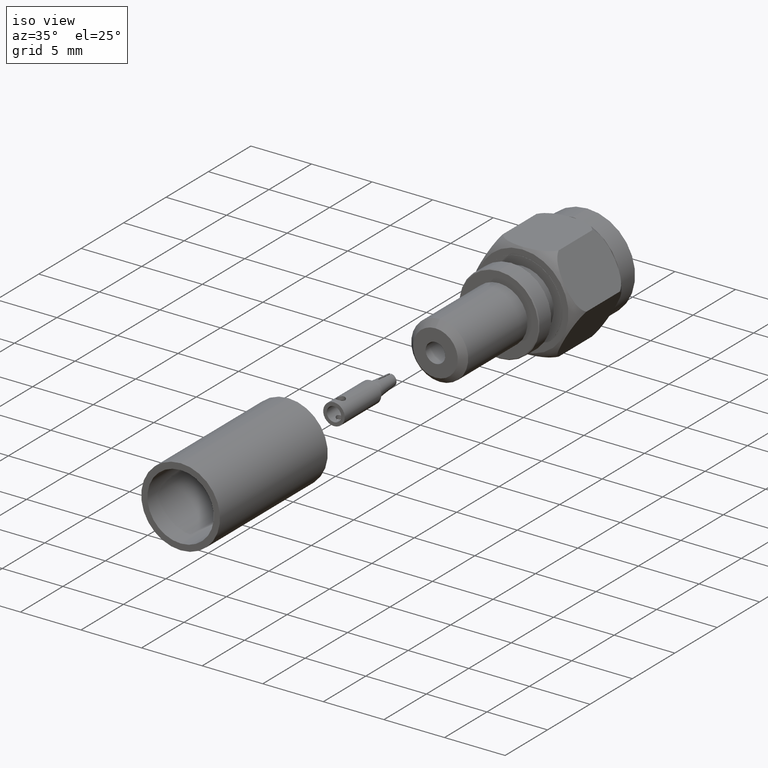
[diagram: clean part render]
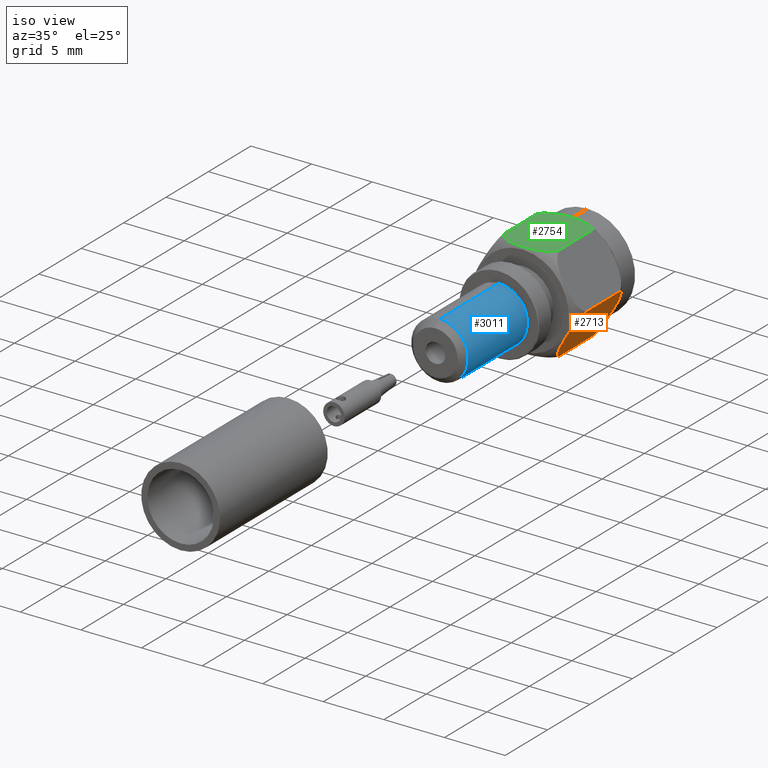
[diagram: same view with three faces highlighted in distinct colors, each labeled with its STEP entity id]
A machine part, iso view with three faces highlighted in distinct colors.
Their STEP definitions:

[orange] entity #2713 — the highlighted planar face has unit normal (-0.866, 0, 0.5).
#27 = CARTESIAN_POINT ( 'NONE',  ( 0.09006664199358174700, 0.07749999999999999900, -0.1560000000000000000 ) ) ;
#30 = VERTEX_POINT ( 'NONE', #27 ) ;
#110 = CARTESIAN_POINT ( 'NONE',  ( 0.1801332839871633000, 0.07749999999999999900, -5.122214988120493500E-017 ) ) ;
#111 = CARTESIAN_POINT ( 'NONE',  ( 0.1791392651766825800, 0.08132487858921630400, -0.001721691083431677200 ) ) ;
#112 = CARTESIAN_POINT ( 'NONE',  ( 0.1778359017004844700, 0.08481043977878151300, -0.003979182844936466700 ) ) ;
#113 = CARTESIAN_POINT ( 'NONE',  ( 0.1749115986983134100, 0.09091645002458012500, -0.009044224221422916500 ) ) ;
#114 = CARTESIAN_POINT ( 'NONE',  ( 0.1732809310562165900, 0.09358338893129682100, -0.01186862342779318100 ) ) ;
#115 = CARTESIAN_POINT ( 'NONE',  ( 0.1697619167272861100, 0.09832693057162490700, -0.01796373503806373100 ) ) ;
#116 = CARTESIAN_POINT ( 'NONE',  ( 0.1678736642886756400, 0.1003915450548186300, -0.02123428419925289100 ) ) ;
#117 = CARTESIAN_POINT ( 'NONE',  ( 0.1640130113962612600, 0.1039297833837526200, -0.02792113115930218400 ) ) ;
#118 = CARTESIAN_POINT ( 'NONE',  ( 0.1620237441491466600, 0.1054253391788926400, -0.03136664310113748700 ) ) ;
#119 = CARTESIAN_POINT ( 'NONE',  ( 0.1559171142852193700, 0.1092676602305941000, -0.04194363628847698500 ) ) ;
#120 = CARTESIAN_POINT ( 'NONE',  ( 0.1517818906347385100, 0.1109160746151377500, -0.04910605375177012900 ) ) ;
#121 = CARTESIAN_POINT ( 'NONE',  ( 0.1434805408817841900, 0.1130631376996672600, -0.06348441329528635400 ) ) ;
#122 = CARTESIAN_POINT ( 'NONE',  ( 0.1393033478783411200, 0.1135569297707708400, -0.07071952381027095400 ) ) ;
#123 = CARTESIAN_POINT ( 'NONE',  ( 0.1309038151776344700, 0.1135575165871926000, -0.08526794120773099900 ) ) ;
#124 = CARTESIAN_POINT ( 'NONE',  ( 0.1266516385428066400, 0.1130555250326611100, -0.09263292718201003600 ) ) ;
#125 = CARTESIAN_POINT ( 'NONE',  ( 0.1182812370932535100, 0.1108705387437523800, -0.1071308877723843200 ) ) ;
#126 = CARTESIAN_POINT ( 'NONE',  ( 0.1141578027388064800, 0.1092021596324204600, -0.1142728855759614800 ) ) ;
#127 = CARTESIAN_POINT ( 'NONE',  ( 0.1060997042439164500, 0.1041053802748038600, -0.1282299215815053100 ) ) ;
#128 = CARTESIAN_POINT ( 'NONE',  ( 0.1021636957830878700, 0.1006608057776561400, -0.1350472882146811800 ) ) ;
#129 = CARTESIAN_POINT ( 'NONE',  ( 0.09690380602829487500, 0.09355903251023074700, -0.1441576845121938000 ) ) ;
#130 = CARTESIAN_POINT ( 'NONE',  ( 0.09523188363802992400, 0.09081550468868732100, -0.1470535390384446800 ) ) ;
#131 = CARTESIAN_POINT ( 'NONE',  ( 0.09232001210263036900, 0.08470103869158925000, -0.1520970484828703700 ) ) ;
#175 = CARTESIAN_POINT ( 'NONE',  ( 0.09105966938114465300, 0.08132106369925844200, -0.1542800261114332100 ) ) ;
#176 = CARTESIAN_POINT ( 'NONE',  ( 0.09006664199358174700, 0.07749999999999999900, -0.1560000000000000000 ) ) ;
#178 = B_SPLINE_CURVE_WITH_KNOTS ( 'NONE', 3,
 ( #176, #175, #131, #130, #129, #128, #127, #126, #125, #124, #123, #122, #121, #120, #119, #118, #117, #116, #115, #114, #113, #112, #111, #110 ),
 .UNSPECIFIED., .F., .F.,
 ( 4, 2, 2, 2, 2, 2, 2, 2, 2, 2, 2, 4 ),
 ( 2.204096890382543700E-007, 0.0003211244726676897100, 0.0006420285356463410800, 0.001283836661603643800, 0.001925644787560946600, 0.002567452913518248900, 0.003209261039475552300, 0.003851069165432855700, 0.004171973228411508300, 0.004492877291390160400, 0.004813781354368811700, 0.005134685417347464700 ),
 .UNSPECIFIED. ) ;
#209 = EDGE_CURVE ( 'NONE', #30, #268, #178, .T. ) ;
#268 = VERTEX_POINT ( 'NONE', #348 ) ;
#348 = CARTESIAN_POINT ( 'NONE',  ( 0.1801332839871633000, 0.07749999999999999900, -5.122214988120493500E-017 ) ) ;
#1011 = LINE ( 'NONE', #1094, #1088 ) ;
#1074 = PLANE ( 'NONE',  #1076 ) ;
#1076 = AXIS2_PLACEMENT_3D ( 'NONE', #1120, #1119, #1118 ) ;
#1080 = FACE_OUTER_BOUND ( 'NONE', #2710, .T. ) ;
#1088 = VECTOR ( 'NONE', #1093, 39.37007874015748100 ) ;
#1093 = DIRECTION ( 'NONE',  ( -0.0000000000000000000, -1.000000000000000000, -0.0000000000000000000 ) ) ;
#1094 = CARTESIAN_POINT ( 'NONE',  ( 0.1801332839871633000, 0.1174999999999999900, 2.134256245050205600E-017 ) ) ;
#1108 = DIRECTION ( 'NONE',  ( -0.0000000000000000000, -1.000000000000000000, -0.0000000000000000000 ) ) ;
#1109 = VECTOR ( 'NONE', #1108, 39.37007874015748100 ) ;
#1110 = CARTESIAN_POINT ( 'NONE',  ( 0.09006664199358148400, 0.1174999999999999900, -0.1560000000000000000 ) ) ;
#1118 = DIRECTION ( 'NONE',  ( 0.5000000000000007800, 0.0000000000000000000, 0.8660254037844380400 ) ) ;
#1119 = DIRECTION ( 'NONE',  ( -0.8660254037844381500, 0.0000000000000000000, 0.5000000000000008900 ) ) ;
#1120 = CARTESIAN_POINT ( 'NONE',  ( 0.09006664199358148400, 0.1174999999999999900, -0.1560000000000000000 ) ) ;
#1121 = LINE ( 'NONE', #1110, #1109 ) ;
#1551 = CARTESIAN_POINT ( 'NONE',  ( 0.09006664199358174700, -0.07749999999999999900, -0.1560000000000000000 ) ) ;
#1560 = CARTESIAN_POINT ( 'NONE',  ( 0.1801332839871633000, -0.07750000000062706700, 2.134256245050205600E-017 ) ) ;
#1624 = CARTESIAN_POINT ( 'NONE',  ( 0.09006664199358174700, -0.07749999999999999900, -0.1560000000000000000 ) ) ;
#1625 = CARTESIAN_POINT ( 'NONE',  ( 0.09106066080405968200, -0.08132487858920735300, -0.1542783089165724900 ) ) ;
#1626 = CARTESIAN_POINT ( 'NONE',  ( 0.09236402428025405900, -0.08481043977876515100, -0.1520208171550743400 ) ) ;
#1627 = CARTESIAN_POINT ( 'NONE',  ( 0.09528832728241645700, -0.09091645002455285600, -0.1469557757786028000 ) ) ;
#1628 = CARTESIAN_POINT ( 'NONE',  ( 0.09691899492450828400, -0.09358338893126570700, -0.1441313765722411800 ) ) ;
#1629 = CARTESIAN_POINT ( 'NONE',  ( 0.1004380092534279300, -0.09832693057158814500, -0.1380362649619895900 ) ) ;
#1630 = CARTESIAN_POINT ( 'NONE',  ( 0.1023262616920330400, -0.1003915450547808600, -0.1347657158008097300 ) ) ;
#1631 = CARTESIAN_POINT ( 'NONE',  ( 0.1061869145844363500, -0.1039297833837142900, -0.1280788688407794000 ) ) ;
#1632 = CARTESIAN_POINT ( 'NONE',  ( 0.1081761818315454000, -0.1054253391788548100, -0.1246333568989538000 ) ) ;
#1633 = CARTESIAN_POINT ( 'NONE',  ( 0.1142828116954554100, -0.1092676602305594900, -0.1140563637116443200 ) ) ;
#1634 = CARTESIAN_POINT ( 'NONE',  ( 0.1184180353459271700, -0.1109160746151086600, -0.1068939462483668200 ) ) ;
#1635 = CARTESIAN_POINT ( 'NONE',  ( 0.1267193850988608300, -0.1130631376996501400, -0.09251558670488638200 ) ) ;
#1636 = CARTESIAN_POINT ( 'NONE',  ( 0.1308965781022935500, -0.1135569297707610100, -0.08528047618991976800 ) ) ;
#1637 = CARTESIAN_POINT ( 'NONE',  ( 0.1392961108029792100, -0.1135575165872023700, -0.07073205879249606900 ) ) ;
#1638 = CARTESIAN_POINT ( 'NONE',  ( 0.1435482874377963800, -0.1130555250326833900, -0.06336707281823547600 ) ) ;
#1639 = CARTESIAN_POINT ( 'NONE',  ( 0.1519186888873325400, -0.1108705387438084900, -0.04886911222789056000 ) ) ;
#1640 = CARTESIAN_POINT ( 'NONE',  ( 0.1560421232417715800, -0.1092021596324979900, -0.04172711442432720100 ) ) ;
#1641 = CARTESIAN_POINT ( 'NONE',  ( 0.1641002217366479000, -0.1041053802749457000, -0.02777007841880713800 ) ) ;
#1642 = CARTESIAN_POINT ( 'NONE',  ( 0.1680362301974758500, -0.1006608057778368100, -0.02095271178563228700 ) ) ;
#1643 = CARTESIAN_POINT ( 'NONE',  ( 0.1732961199522760900, -0.09355903251049702000, -0.01184231548810726700 ) ) ;
#1644 = CARTESIAN_POINT ( 'NONE',  ( 0.1749680423425471200, -0.09081550468898524900, -0.008946460961845797300 ) ) ;
#1645 = CARTESIAN_POINT ( 'NONE',  ( 0.1778799138779685300, -0.08470103869194932400, -0.003902951517382311000 ) ) ;
#1646 = CARTESIAN_POINT ( 'NONE',  ( 0.1791402565994673300, -0.08132106369965329300, -0.001719973888796692100 ) ) ;
#1647 = CARTESIAN_POINT ( 'NONE',  ( 0.1801332839871633000, -0.07750000000062706700, 2.134256245050205600E-017 ) ) ;
#1652 = B_SPLINE_CURVE_WITH_KNOTS ( 'NONE', 3,
 ( #1647, #1646, #1645, #1644, #1643, #1642, #1641, #1640, #1639, #1638, #1637, #1636, #1635, #1634, #1633, #1632, #1631, #1630, #1629, #1628, #1627, #1626, #1625, #1624 ),
 .UNSPECIFIED., .F., .F.,
 ( 4, 2, 2, 2, 2, 2, 2, 2, 2, 2, 2, 4 ),
 ( 2.204097013235236000E-007, 0.0003211244726792078900, 0.0006420285356570922500, 0.001283836661612860000, 0.001925644787568627100, 0.002567452913524395000, 0.003209261039480162300, 0.003851069165435929600, 0.004171973228413813700, 0.004492877291391696500, 0.004813781354369580200, 0.005134685417347463000 ),
 .UNSPECIFIED. ) ;
#2695 = EDGE_CURVE ( 'NONE', #268, #2960, #1011, .T. ) ;
#2705 = ORIENTED_EDGE ( 'NONE', *, *, #2715, .F. ) ;
#2710 = EDGE_LOOP ( 'NONE', ( #2705, #2719, #2716, #3070 ) ) ;
#2713 = ADVANCED_FACE ( 'NONE', ( #1080 ), #1074, .F. ) ;
#2715 = EDGE_CURVE ( 'NONE', #30, #2962, #1121, .T. ) ;
#2716 = ORIENTED_EDGE ( 'NONE', *, *, #2695, .T. ) ;
#2719 = ORIENTED_EDGE ( 'NONE', *, *, #209, .T. ) ;
#2960 = VERTEX_POINT ( 'NONE', #1560 ) ;
#2962 = VERTEX_POINT ( 'NONE', #1551 ) ;
#2984 = EDGE_CURVE ( 'NONE', #2960, #2962, #1652, .T. ) ;
#3070 = ORIENTED_EDGE ( 'NONE', *, *, #2984, .T. ) ;

[blue] entity #3011 — the highlighted cylindrical surface (edge-blend (fillet) strip) has radius 2.3495 mm, axis along (0, 1, 0).
#1299 = CARTESIAN_POINT ( 'NONE',  ( 0.0000000000000000000, -0.2255000000000000300, 0.09249999999999999900 ) ) ;
#1561 = DIRECTION ( 'NONE',  ( 0.0000000000000000000, 0.0000000000000000000, -1.000000000000000000 ) ) ;
#1562 = DIRECTION ( 'NONE',  ( 0.0000000000000000000, 1.000000000000000000, 0.0000000000000000000 ) ) ;
#1563 = AXIS2_PLACEMENT_3D ( 'NONE', #1572, #1562, #1561 ) ;
#1564 = CIRCLE ( 'NONE', #1563, 0.09249999999999999900 ) ;
#1572 = CARTESIAN_POINT ( 'NONE',  ( 0.0000000000000000000, -0.5004999999999999400, 0.0000000000000000000 ) ) ;
#1577 = DIRECTION ( 'NONE',  ( -0.0000000000000000000, 1.000000000000000000, -0.0000000000000000000 ) ) ;
#1578 = VECTOR ( 'NONE', #1577, 39.37007874015748100 ) ;
#1579 = CARTESIAN_POINT ( 'NONE',  ( 1.132798289211301800E-017, -0.5205000000000000700, -0.09249999999999999900 ) ) ;
#1580 = LINE ( 'NONE', #1579, #1578 ) ;
#1653 = CARTESIAN_POINT ( 'NONE',  ( 1.132798289211301800E-017, -0.2255000000000000300, -0.09249999999999999900 ) ) ;
#1702 = CARTESIAN_POINT ( 'NONE',  ( 0.0000000000000000000, -0.5004999999999999400, 0.09249999999999999900 ) ) ;
#1742 = CARTESIAN_POINT ( 'NONE',  ( 1.132798289211301800E-017, -0.5004999999999999400, -0.09249999999999999900 ) ) ;
#1948 = DIRECTION ( 'NONE',  ( 0.0000000000000000000, 0.0000000000000000000, 1.000000000000000000 ) ) ;
#1949 = DIRECTION ( 'NONE',  ( -0.0000000000000000000, 1.000000000000000000, -0.0000000000000000000 ) ) ;
#1952 = CARTESIAN_POINT ( 'NONE',  ( 0.0000000000000000000, -0.5205000000000000700, 0.0000000000000000000 ) ) ;
#1953 = DIRECTION ( 'NONE',  ( 0.0000000000000000000, 0.0000000000000000000, -1.000000000000000000 ) ) ;
#1954 = DIRECTION ( 'NONE',  ( 0.0000000000000000000, -1.000000000000000000, 0.0000000000000000000 ) ) ;
#1955 = CARTESIAN_POINT ( 'NONE',  ( 0.0000000000000000000, -0.2255000000000000300, 0.0000000000000000000 ) ) ;
#1956 = AXIS2_PLACEMENT_3D ( 'NONE', #1955, #1954, #1953 ) ;
#1957 = AXIS2_PLACEMENT_3D ( 'NONE', #1952, #1949, #1948 ) ;
#1958 = DIRECTION ( 'NONE',  ( -0.0000000000000000000, 1.000000000000000000, -0.0000000000000000000 ) ) ;
#1959 = VECTOR ( 'NONE', #1958, 39.37007874015748100 ) ;
#1960 = CARTESIAN_POINT ( 'NONE',  ( 0.0000000000000000000, -0.5205000000000000700, 0.09249999999999999900 ) ) ;
#1961 = LINE ( 'NONE', #1960, #1959 ) ;
#1962 = CIRCLE ( 'NONE', #1956, 0.09249999999999999900 ) ;
#1963 = CYLINDRICAL_SURFACE ( 'NONE', #1957, 0.09249999999999999900 ) ;
#1967 = FACE_OUTER_BOUND ( 'NONE', #3014, .T. ) ;
#2899 = ORIENTED_EDGE ( 'NONE', *, *, #3006, .F. ) ;
#2902 = VERTEX_POINT ( 'NONE', #1299 ) ;
#2942 = VERTEX_POINT ( 'NONE', #1742 ) ;
#2946 = VERTEX_POINT ( 'NONE', #1702 ) ;
#2950 = EDGE_CURVE ( 'NONE', #2946, #2942, #1564, .T. ) ;
#2999 = VERTEX_POINT ( 'NONE', #1653 ) ;
#3000 = EDGE_CURVE ( 'NONE', #2942, #2999, #1580, .T. ) ;
#3005 = ORIENTED_EDGE ( 'NONE', *, *, #3007, .T. ) ;
#3006 = EDGE_CURVE ( 'NONE', #2946, #2902, #1961, .T. ) ;
#3007 = EDGE_CURVE ( 'NONE', #2999, #2902, #1962, .T. ) ;
#3010 = ORIENTED_EDGE ( 'NONE', *, *, #3000, .T. ) ;
#3011 = ADVANCED_FACE ( 'NONE', ( #1967 ), #1963, .T. ) ;
#3012 = ORIENTED_EDGE ( 'NONE', *, *, #2950, .T. ) ;
#3014 = EDGE_LOOP ( 'NONE', ( #3012, #3010, #3005, #2899 ) ) ;

[green] entity #2754 — the highlighted planar face has unit normal (0, 0, -1).
#1 = CARTESIAN_POINT ( 'NONE',  ( 0.008450997494515655900, 0.1135572233053826100, 0.1560000000000000300 ) ) ;
#2 = CARTESIAN_POINT ( 'NONE',  ( 0.01689304499247248200, 0.1130547850739234100, 0.1560000000000000000 ) ) ;
#3 = CARTESIAN_POINT ( 'NONE',  ( 0.03359171387172955900, 0.1108777151575357200, 0.1560000000000000300 ) ) ;
#4 = CARTESIAN_POINT ( 'NONE',  ( 0.04194874959850779200, 0.1091863545924823000, 0.1559999999999999400 ) ) ;
#5 = CARTESIAN_POINT ( 'NONE',  ( 0.05805035726873620400, 0.1040850150126289800, 0.1560000000000000000 ) ) ;
#6 = CARTESIAN_POINT ( 'NONE',  ( 0.06584102524757827500, 0.1006816729264388400, 0.1559999999999999400 ) ) ;
#7 = CARTESIAN_POINT ( 'NONE',  ( 0.07640472395876499200, 0.09355085670352236700, 0.1560000000000000300 ) ) ;
#8 = CARTESIAN_POINT ( 'NONE',  ( 0.07967098343096562500, 0.09087574840599509100, 0.1560000000000000300 ) ) ;
#9 = CARTESIAN_POINT ( 'NONE',  ( 0.08553115326292001800, 0.08473927719803107900, 0.1560000000000000000 ) ) ;
#10 = CARTESIAN_POINT ( 'NONE',  ( 0.08810343659456752700, 0.08127710271557178600, 0.1560000000000000000 ) ) ;
#11 = CARTESIAN_POINT ( 'NONE',  ( 0.09006664199358151200, 0.07749999999999999900, 0.1560000000000000000 ) ) ;
#15 = CARTESIAN_POINT ( 'NONE',  ( 0.09006664199358151200, 0.07749999999999999900, 0.1560000000000000000 ) ) ;
#17 = B_SPLINE_CURVE_WITH_KNOTS ( 'NONE', 3,
 ( #11, #10, #9, #8, #7, #6, #5, #4, #3, #2, #1, #174 ),
 .UNSPECIFIED., .F., .F.,
 ( 4, 2, 2, 2, 2, 4 ),
 ( 0.009407508188636804300, 0.009726627086598591000, 0.01004574598456037800, 0.01068398378048395100, 0.01132222157640752600, 0.01196045937233110000 ),
 .UNSPECIFIED. ) ;
#26 = CARTESIAN_POINT ( 'NONE',  ( 1.910449006669871100E-017, 0.1135572233053825900, 0.1560000000000000000 ) ) ;
#35 = VERTEX_POINT ( 'NONE', #26 ) ;
#37 = EDGE_CURVE ( 'NONE', #40, #35, #17, .T. ) ;
#40 = VERTEX_POINT ( 'NONE', #15 ) ;
#174 = CARTESIAN_POINT ( 'NONE',  ( 1.910449006669871100E-017, 0.1135572233053825900, 0.1560000000000000000 ) ) ;
#1029 = DIRECTION ( 'NONE',  ( 0.0000000000000000000, 0.0000000000000000000, -1.000000000000000000 ) ) ;
#1032 = AXIS2_PLACEMENT_3D ( 'NONE', #1036, #1029, #1259 ) ;
#1033 = CARTESIAN_POINT ( 'NONE',  ( 0.09006664199358151200, 0.1174999999999999900, 0.1560000000000000000 ) ) ;
#1036 = CARTESIAN_POINT ( 'NONE',  ( 0.09006664199358151200, 0.1174999999999999900, 0.1560000000000000000 ) ) ;
#1162 = FACE_OUTER_BOUND ( 'NONE', #2741, .T. ) ;
#1174 = VECTOR ( 'NONE', #1217, 39.37007874015748100 ) ;
#1175 = CARTESIAN_POINT ( 'NONE',  ( -0.09006664199358151200, 0.1174999999999999900, 0.1560000000000000000 ) ) ;
#1176 = LINE ( 'NONE', #1175, #1174 ) ;
#1214 = PLANE ( 'NONE',  #1032 ) ;
#1215 = CARTESIAN_POINT ( 'NONE',  ( -0.09006664199358174700, -0.07749999999999999900, 0.1560000000000000000 ) ) ;
#1217 = DIRECTION ( 'NONE',  ( -0.0000000000000000000, -1.000000000000000000, -0.0000000000000000000 ) ) ;
#1240 = DIRECTION ( 'NONE',  ( -0.0000000000000000000, -1.000000000000000000, -0.0000000000000000000 ) ) ;
#1241 = VECTOR ( 'NONE', #1240, 39.37007874015748100 ) ;
#1259 = DIRECTION ( 'NONE',  ( -1.000000000000000000, 0.0000000000000000000, -0.0000000000000000000 ) ) ;
#1260 = CARTESIAN_POINT ( 'NONE',  ( -0.09006664199358174700, 0.07749999999999999900, 0.1560000000000000000 ) ) ;
#1262 = LINE ( 'NONE', #1033, #1241 ) ;
#1434 = CARTESIAN_POINT ( 'NONE',  ( -0.008480627520290853100, 0.1135572233053826200, 0.1560000000000000300 ) ) ;
#1435 = CARTESIAN_POINT ( 'NONE',  ( 1.910449006669871100E-017, 0.1135572233053825900, 0.1560000000000000000 ) ) ;
#1438 = B_SPLINE_CURVE_WITH_KNOTS ( 'NONE', 3,
 ( #1435, #1434, #1503, #1502, #1501, #1500, #1499, #1498, #1497, #1496, #1495, #1494, #1493, #1492 ),
 .UNSPECIFIED., .F., .F.,
 ( 4, 2, 2, 2, 2, 2, 4 ),
 ( 4.766595695789196300E-019, 0.0006404755202106995500, 0.001280951040421398700, 0.001601188800526748500, 0.001921426560632098200, 0.002241664320737448700, 0.002561902080842799100 ),
 .UNSPECIFIED. ) ;
#1473 = CARTESIAN_POINT ( 'NONE',  ( 1.910449006669871100E-017, -0.1135572233053825900, 0.1560000000000000000 ) ) ;
#1474 = CARTESIAN_POINT ( 'NONE',  ( -0.008450997494515676700, -0.1135572233053825900, 0.1560000000000000000 ) ) ;
#1475 = CARTESIAN_POINT ( 'NONE',  ( -0.01689304499247247200, -0.1130547850739234100, 0.1560000000000000300 ) ) ;
#1476 = CARTESIAN_POINT ( 'NONE',  ( -0.03359171387172956600, -0.1108777151575356900, 0.1560000000000000300 ) ) ;
#1477 = CARTESIAN_POINT ( 'NONE',  ( -0.04194874959850784100, -0.1091863545924822400, 0.1560000000000000000 ) ) ;
#1478 = CARTESIAN_POINT ( 'NONE',  ( -0.05805035726873630100, -0.1040850150126289100, 0.1560000000000000300 ) ) ;
#1479 = CARTESIAN_POINT ( 'NONE',  ( -0.06584102524757831600, -0.1006816729264388100, 0.1559999999999999400 ) ) ;
#1480 = CARTESIAN_POINT ( 'NONE',  ( -0.07640472395876506100, -0.09355085670352232500, 0.1560000000000000300 ) ) ;
#1481 = CARTESIAN_POINT ( 'NONE',  ( -0.07967098343096563900, -0.09087574840599503500, 0.1559999999999999400 ) ) ;
#1482 = CARTESIAN_POINT ( 'NONE',  ( -0.08553115326292004500, -0.08473927719803102400, 0.1560000000000000000 ) ) ;
#1483 = CARTESIAN_POINT ( 'NONE',  ( -0.08810343659456756900, -0.08127710271557171700, 0.1560000000000000300 ) ) ;
#1484 = CARTESIAN_POINT ( 'NONE',  ( -0.09006664199358174700, -0.07749999999999999900, 0.1560000000000000000 ) ) ;
#1488 = B_SPLINE_CURVE_WITH_KNOTS ( 'NONE', 3,
 ( #1484, #1483, #1482, #1481, #1480, #1479, #1478, #1477, #1476, #1475, #1474, #1473 ),
 .UNSPECIFIED., .F., .F.,
 ( 4, 2, 2, 2, 2, 4 ),
 ( 0.009407508188636802500, 0.009726627086598589300, 0.01004574598456037600, 0.01068398378048395100, 0.01132222157640752600, 0.01196045937233110000 ),
 .UNSPECIFIED. ) ;
#1492 = CARTESIAN_POINT ( 'NONE',  ( -0.09006664199358174700, 0.07749999999999999900, 0.1560000000000000000 ) ) ;
#1493 = CARTESIAN_POINT ( 'NONE',  ( -0.08810921443242972200, 0.08126598646297116000, 0.1560000000000000300 ) ) ;
#1494 = CARTESIAN_POINT ( 'NONE',  ( -0.08551607731204424700, 0.08475501360076181900, 0.1560000000000000600 ) ) ;
#1495 = CARTESIAN_POINT ( 'NONE',  ( -0.07968664662947888600, 0.09085939706229127800, 0.1560000000000000300 ) ) ;
#1496 = CARTESIAN_POINT ( 'NONE',  ( -0.07643786778567889000, 0.09352381180593243000, 0.1560000000000000600 ) ) ;
#1497 = CARTESIAN_POINT ( 'NONE',  ( -0.06943181440683798800, 0.09826238547170500200, 0.1560000000000000000 ) ) ;
#1498 = CARTESIAN_POINT ( 'NONE',  ( -0.06566920181682749100, 0.1003278652554596800, 0.1559999999999999400 ) ) ;
#1499 = CARTESIAN_POINT ( 'NONE',  ( -0.05797516597332796900, 0.1038690676081856100, 0.1560000000000000000 ) ) ;
#1500 = CARTESIAN_POINT ( 'NONE',  ( -0.05401089938936665800, 0.1053666102901036500, 0.1560000000000000000 ) ) ;
#1501 = CARTESIAN_POINT ( 'NONE',  ( -0.04184211199333765600, 0.1092164952190137200, 0.1560000000000000300 ) ) ;
#1502 = CARTESIAN_POINT ( 'NONE',  ( -0.03356329900518018700, 0.1108820980434391500, 0.1560000000000000300 ) ) ;
#1503 = CARTESIAN_POINT ( 'NONE',  ( -0.01689368606618369500, 0.1130540220334257000, 0.1560000000000000000 ) ) ;
#1537 = CARTESIAN_POINT ( 'NONE',  ( 0.09006664199358142800, -0.07749999999999999900, 0.1560000000000001900 ) ) ;
#1538 = CARTESIAN_POINT ( 'NONE',  ( 0.08810921443242961100, -0.08126598646297125700, 0.1560000000000000000 ) ) ;
#1539 = CARTESIAN_POINT ( 'NONE',  ( 0.08551607731204419200, -0.08475501360076190300, 0.1560000000000000000 ) ) ;
#1540 = CARTESIAN_POINT ( 'NONE',  ( 0.07968664662947878800, -0.09085939706229133300, 0.1560000000000000300 ) ) ;
#1541 = CARTESIAN_POINT ( 'NONE',  ( 0.07643786778567879200, -0.09352381180593245800, 0.1560000000000000000 ) ) ;
#1542 = CARTESIAN_POINT ( 'NONE',  ( 0.06943181440683787700, -0.09826238547170501600, 0.1559999999999999400 ) ) ;
#1543 = CARTESIAN_POINT ( 'NONE',  ( 0.06566920181682738000, -0.1003278652554597100, 0.1560000000000000000 ) ) ;
#1544 = CARTESIAN_POINT ( 'NONE',  ( 0.05797516597332790600, -0.1038690676081856400, 0.1560000000000000000 ) ) ;
#1545 = CARTESIAN_POINT ( 'NONE',  ( 0.05401089938936658900, -0.1053666102901036800, 0.1560000000000000000 ) ) ;
#1546 = CARTESIAN_POINT ( 'NONE',  ( 0.04184211199333759400, -0.1092164952190137100, 0.1560000000000000000 ) ) ;
#1547 = CARTESIAN_POINT ( 'NONE',  ( 0.03356329900518013900, -0.1108820980434391800, 0.1559999999999999400 ) ) ;
#1548 = CARTESIAN_POINT ( 'NONE',  ( 0.01689368606618366400, -0.1130540220334257000, 0.1560000000000000000 ) ) ;
#1549 = CARTESIAN_POINT ( 'NONE',  ( 0.008480627520290842700, -0.1135572233053825900, 0.1560000000000000000 ) ) ;
#1550 = CARTESIAN_POINT ( 'NONE',  ( 1.910449006669871100E-017, -0.1135572233053825900, 0.1560000000000000000 ) ) ;
#1554 = B_SPLINE_CURVE_WITH_KNOTS ( 'NONE', 3,
 ( #1550, #1549, #1548, #1547, #1546, #1545, #1544, #1543, #1542, #1541, #1540, #1539, #1538, #1537 ),
 .UNSPECIFIED., .F., .F.,
 ( 4, 2, 2, 2, 2, 2, 4 ),
 ( 4.766595695789196300E-019, 0.0006404755202106989000, 0.001280951040421397400, 0.001601188800526746800, 0.001921426560632096500, 0.002241664320737445700, 0.002561902080842795600 ),
 .UNSPECIFIED. ) ;
#1565 = CARTESIAN_POINT ( 'NONE',  ( 1.910449006669871100E-017, -0.1135572233053825900, 0.1560000000000000000 ) ) ;
#1688 = CARTESIAN_POINT ( 'NONE',  ( 0.09006664199358142800, -0.07749999999999999900, 0.1560000000000001900 ) ) ;
#2722 = ORIENTED_EDGE ( 'NONE', *, *, #37, .T. ) ;
#2739 = ORIENTED_EDGE ( 'NONE', *, *, #2756, .F. ) ;
#2741 = EDGE_LOOP ( 'NONE', ( #2739, #2722, #2763, #2761, #2772, #2766 ) ) ;
#2749 = EDGE_CURVE ( 'NONE', #2757, #2751, #1176, .T. ) ;
#2751 = VERTEX_POINT ( 'NONE', #1215 ) ;
#2754 = ADVANCED_FACE ( 'NONE', ( #1162 ), #1214, .F. ) ;
#2756 = EDGE_CURVE ( 'NONE', #40, #2958, #1262, .T. ) ;
#2757 = VERTEX_POINT ( 'NONE', #1260 ) ;
#2761 = ORIENTED_EDGE ( 'NONE', *, *, #2749, .T. ) ;
#2763 = ORIENTED_EDGE ( 'NONE', *, *, #2765, .T. ) ;
#2765 = EDGE_CURVE ( 'NONE', #35, #2757, #1438, .T. ) ;
#2766 = ORIENTED_EDGE ( 'NONE', *, *, #2955, .T. ) ;
#2769 = EDGE_CURVE ( 'NONE', #2751, #2957, #1488, .T. ) ;
#2772 = ORIENTED_EDGE ( 'NONE', *, *, #2769, .T. ) ;
#2955 = EDGE_CURVE ( 'NONE', #2957, #2958, #1554, .T. ) ;
#2957 = VERTEX_POINT ( 'NONE', #1565 ) ;
#2958 = VERTEX_POINT ( 'NONE', #1688 ) ;